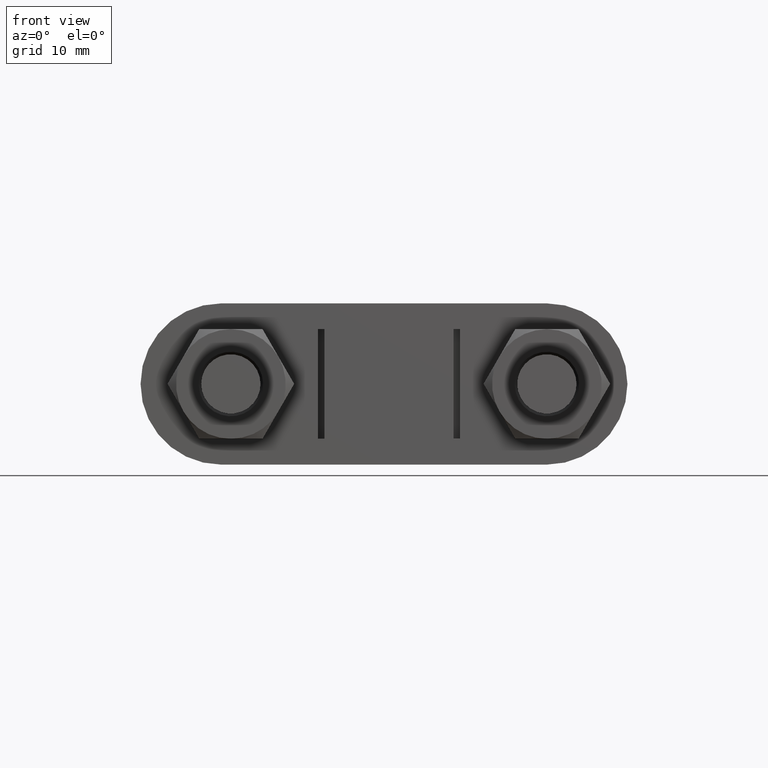
[diagram: clean part render]
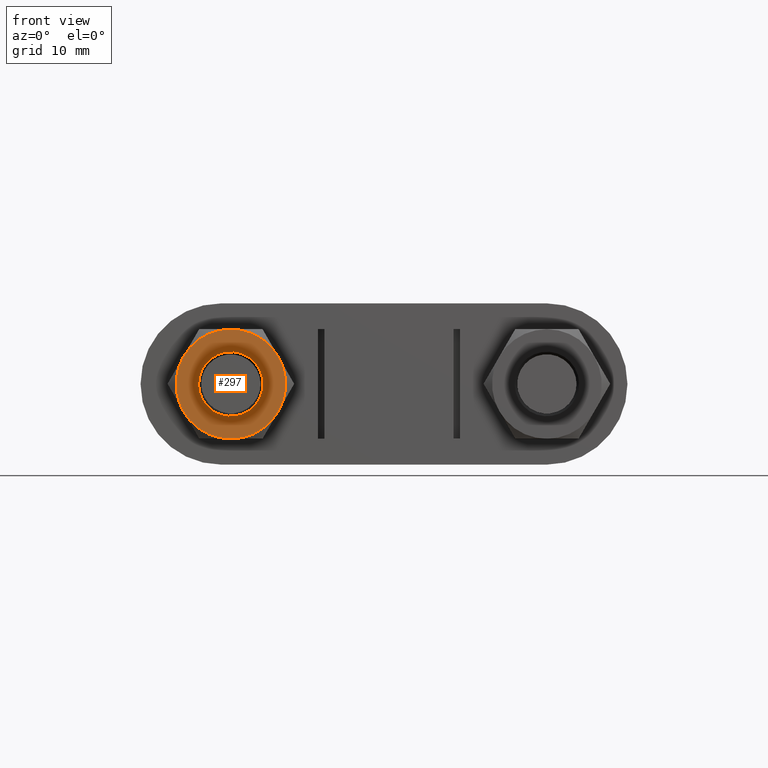
[diagram: same view with one face highlighted and labeled with its STEP entity id]
A machine part, front view. The second image highlights one B-rep face of the part: STEP entity #297.
In plain terms, the highlighted planar face has unit normal (0, 1, 0).
Its self-contained STEP definition (entity closure, byte-faithful):
#297 = ADVANCED_FACE( '', ( #447, #448 ), #449, .F. );
#447 = FACE_OUTER_BOUND( '', #1375, .T. );
#448 = FACE_BOUND( '', #1376, .T. );
#449 = PLANE( '', #1377 );
#1375 = EDGE_LOOP( '', ( #1755, #1756, #1757, #1758, #1759, #1760 ) );
#1376 = EDGE_LOOP( '', ( #1761 ) );
#1377 = AXIS2_PLACEMENT_3D( '', #1762, #1763, #1764 );
#1755 = ORIENTED_EDGE( '', *, *, #2431, .F. );
#1756 = ORIENTED_EDGE( '', *, *, #2432, .F. );
#1757 = ORIENTED_EDGE( '', *, *, #2433, .F. );
#1758 = ORIENTED_EDGE( '', *, *, #2434, .F. );
#1759 = ORIENTED_EDGE( '', *, *, #2429, .F. );
#1760 = ORIENTED_EDGE( '', *, *, #2435, .F. );
#1761 = ORIENTED_EDGE( '', *, *, #2436, .T. );
#1762 = CARTESIAN_POINT( '', ( -24.5000000000000, 20.0000000000000, 5.71428755008485E-015 ) );
#1763 = DIRECTION( '', ( 2.44921270764476E-016, 1.00000000000000, 3.06151588455594E-016 ) );
#1764 = DIRECTION( '', ( 0.866025407760328, -3.65183835502485E-016, 0.499999993113559 ) );
#2429 = EDGE_CURVE( '', #2696, #2698, #2699, .T. );
#2431 = EDGE_CURVE( '', #2701, #2702, #2703, .T. );
#2432 = EDGE_CURVE( '', #2704, #2701, #2705, .T. );
#2433 = EDGE_CURVE( '', #2706, #2704, #2707, .T. );
#2434 = EDGE_CURVE( '', #2698, #2706, #2708, .T. );
#2435 = EDGE_CURVE( '', #2702, #2696, #2709, .T. );
#2436 = EDGE_CURVE( '', #2710, #2710, #2711, .T. );
#2696 = VERTEX_POINT( '', #3262 );
#2698 = VERTEX_POINT( '', #3269 );
#2699 = CIRCLE( '', #3270, 8.50000000000000 );
#2701 = VERTEX_POINT( '', #3279 );
#2702 = VERTEX_POINT( '', #3280 );
#2703 = CIRCLE( '', #3281, 8.50000000000000 );
#2704 = VERTEX_POINT( '', #3282 );
#2705 = CIRCLE( '', #3283, 8.50000000000000 );
#2706 = VERTEX_POINT( '', #3284 );
#2707 = CIRCLE( '', #3285, 8.50000000000000 );
#2708 = CIRCLE( '', #3286, 8.50000000000000 );
#2709 = CIRCLE( '', #3287, 8.50000000000000 );
#2710 = VERTEX_POINT( '', #3288 );
#2711 = CIRCLE( '', #3289, 5.00000000000000 );
#3262 = CARTESIAN_POINT( '', ( -31.8612159659628, 20.0000000000000, -4.24999994146524 ) );
#3269 = CARTESIAN_POINT( '', ( -31.8612158983727, 20.0000000000000, 4.25000005853476 ) );
#3270 = AXIS2_PLACEMENT_3D( '', #3892, #3893, #3894 );
#3279 = CARTESIAN_POINT( '', ( -17.1387841016273, 20.0000000000000, -4.25000005853475 ) );
#3280 = CARTESIAN_POINT( '', ( -24.5000000675901, 20.0000000000000, -8.49999999999999 ) );
#3281 = AXIS2_PLACEMENT_3D( '', #3895, #3896, #3897 );
#3282 = CARTESIAN_POINT( '', ( -17.1387840340372, 20.0000000000000, 4.24999994146525 ) );
#3283 = AXIS2_PLACEMENT_3D( '', #3898, #3899, #3900 );
#3284 = CARTESIAN_POINT( '', ( -24.4999999324099, 20.0000000000000, 8.50000000000001 ) );
#3285 = AXIS2_PLACEMENT_3D( '', #3901, #3902, #3903 );
#3286 = AXIS2_PLACEMENT_3D( '', #3904, #3905, #3906 );
#3287 = AXIS2_PLACEMENT_3D( '', #3907, #3908, #3909 );
#3288 = CARTESIAN_POINT( '', ( -20.1698729611984, 20.0000000000000, 2.49999996556780 ) );
#3289 = AXIS2_PLACEMENT_3D( '', #3910, #3911, #3912 );
#3892 = CARTESIAN_POINT( '', ( -24.5000000000000, 20.0000000000000, 5.71428755008485E-015 ) );
#3893 = DIRECTION( '', ( 2.44921270764475E-016, 1.00000000000000, 3.06151588455594E-016 ) );
#3894 = DIRECTION( '', ( 0.866025407760328, -3.65183835502485E-016, 0.499999993113559 ) );
#3895 = CARTESIAN_POINT( '', ( -24.5000000000000, 20.0000000000000, 5.71428755008485E-015 ) );
#3896 = DIRECTION( '', ( 2.44921270764475E-016, 1.00000000000000, 3.06151588455594E-016 ) );
#3897 = DIRECTION( '', ( 0.866025407760328, -3.65183835502485E-016, 0.499999993113559 ) );
#3898 = CARTESIAN_POINT( '', ( -24.5000000000000, 20.0000000000000, 5.71428755008485E-015 ) );
#3899 = DIRECTION( '', ( 2.44921270764475E-016, 1.00000000000000, 3.06151588455594E-016 ) );
#3900 = DIRECTION( '', ( 0.866025407760328, -3.65183835502485E-016, 0.499999993113559 ) );
#3901 = CARTESIAN_POINT( '', ( -24.5000000000000, 20.0000000000000, 5.71428755008485E-015 ) );
#3902 = DIRECTION( '', ( 2.44921270764475E-016, 1.00000000000000, 3.06151588455594E-016 ) );
#3903 = DIRECTION( '', ( 0.866025407760328, -3.65183835502485E-016, 0.499999993113559 ) );
#3904 = CARTESIAN_POINT( '', ( -24.5000000000000, 20.0000000000000, 5.71428755008485E-015 ) );
#3905 = DIRECTION( '', ( 2.44921270764475E-016, 1.00000000000000, 3.06151588455594E-016 ) );
#3906 = DIRECTION( '', ( 0.866025407760328, -3.65183835502485E-016, 0.499999993113559 ) );
#3907 = CARTESIAN_POINT( '', ( -24.5000000000000, 20.0000000000000, 5.71428755008485E-015 ) );
#3908 = DIRECTION( '', ( 2.44921270764475E-016, 1.00000000000000, 3.06151588455594E-016 ) );
#3909 = DIRECTION( '', ( 0.866025407760328, -3.65183835502485E-016, 0.499999993113559 ) );
#3910 = CARTESIAN_POINT( '', ( -24.5000000000000, 20.0000000000000, 5.71428755008485E-015 ) );
#3911 = DIRECTION( '', ( 2.44921270764476E-016, 1.00000000000000, 3.06151588455594E-016 ) );
#3912 = DIRECTION( '', ( 0.866025407760328, -3.65183835502485E-016, 0.499999993113559 ) );